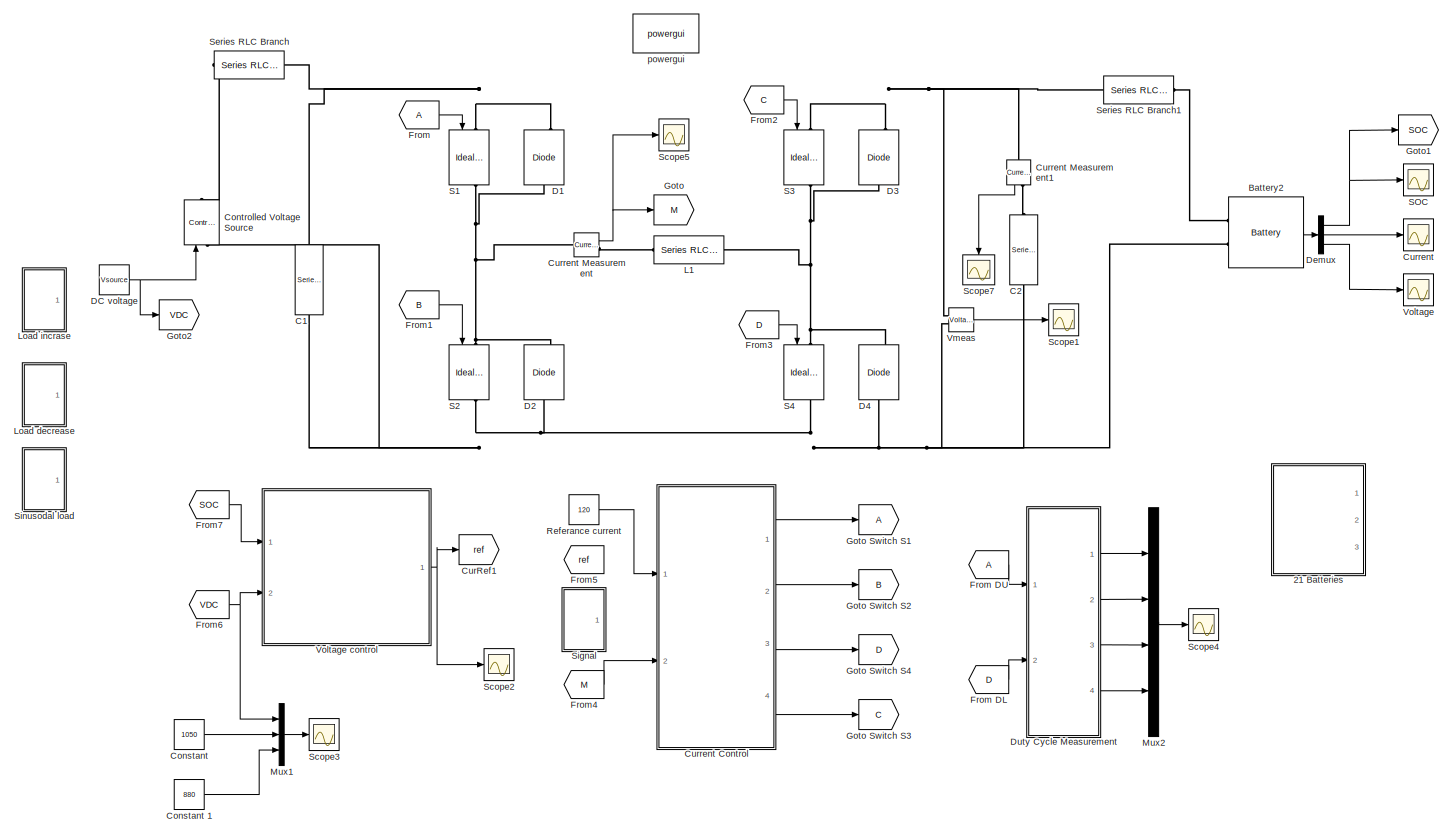
[diagram: root canvas - part 1/1, most of the canvas]
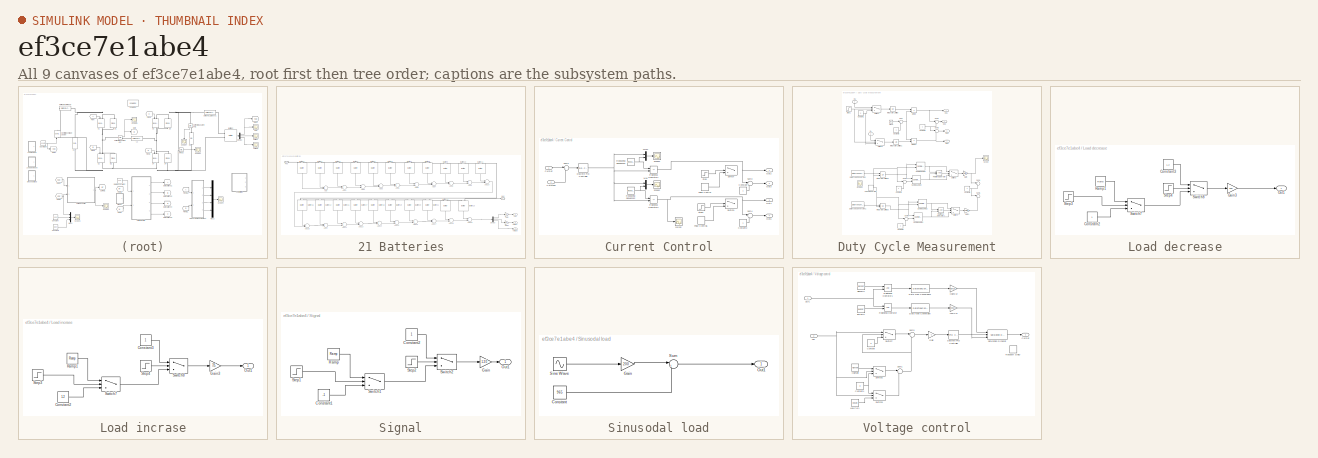
[diagram: thumbnail index - all 9 canvases of the model, root first then tree order]
MODEL slx_ef3ce7e1abe4
KIND model
CONFIG AbsTol = auto
CONFIG EnableMultiTasking = on
CONFIG FixedStep = auto
CONFIG MaxStep = auto
CONFIG MinStep = auto
CONFIG RelTol = 1e-3
CONFIG SampleTimeConstraint = Unconstrained
CONFIG Solver = ode45
CONFIG SolverName = ode45
CONFIG StartTime = 0.0
CONFIG StopTime = 5
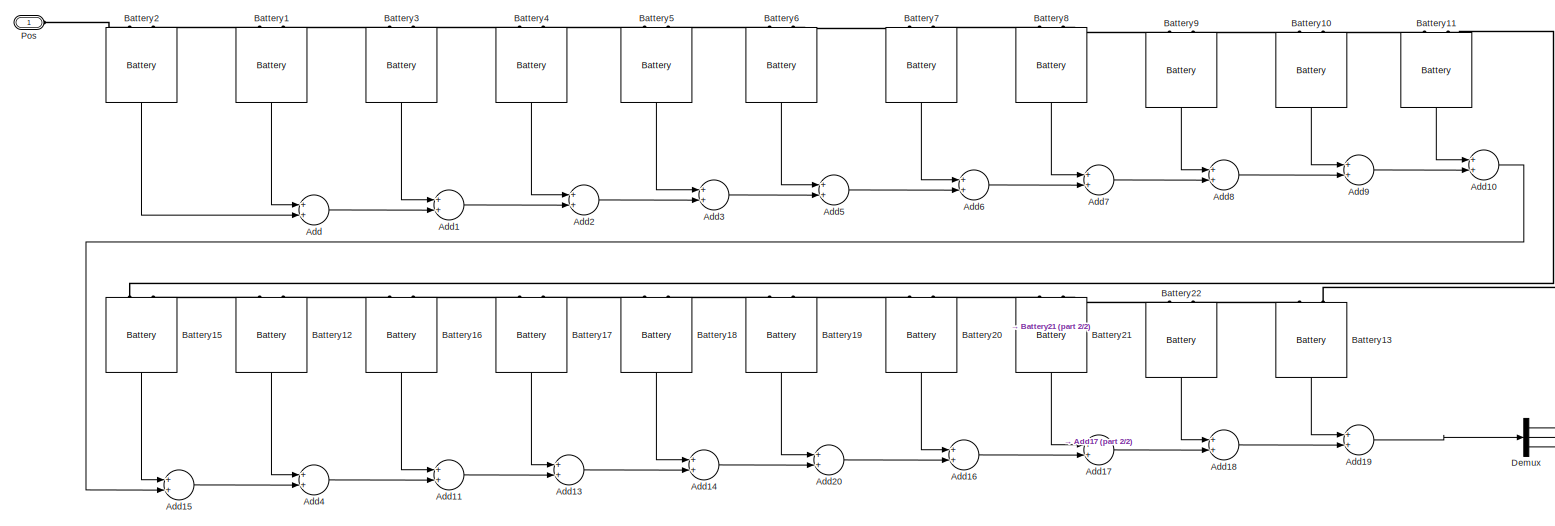
[diagram: 21 Batteries - part 1/2, most of the canvas]
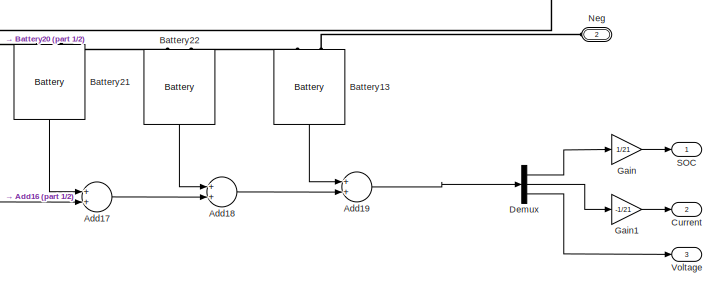
[diagram: 21 Batteries - part 2/2, bottom right region]
BLOCK [SubSystem] 21 Batteries
  Ports = [0, 3, 0, 0, 0, 2]
  RequestExecContextInheritance = off
BLOCK [Sum] 21 Batteries/Add
  InputSameDT = off
  OutDataTypeStr = Inherit: Inherit via internal rule
  Ports = [2, 1]
  SaturateOnIntegerOverflow = off
BLOCK [Sum] 21 Batteries/Add1
  InputSameDT = off
  OutDataTypeStr = Inherit: Inherit via internal rule
  Ports = [2, 1]
  SaturateOnIntegerOverflow = off
BLOCK [Sum] 21 Batteries/Add10
  InputSameDT = off
  OutDataTypeStr = Inherit: Inherit via internal rule
  Ports = [2, 1]
  SaturateOnIntegerOverflow = off
BLOCK [Sum] 21 Batteries/Add11
  InputSameDT = off
  OutDataTypeStr = Inherit: Inherit via internal rule
  Ports = [2, 1]
  SaturateOnIntegerOverflow = off
BLOCK [Sum] 21 Batteries/Add13
  InputSameDT = off
  OutDataTypeStr = Inherit: Inherit via internal rule
  Ports = [2, 1]
  SaturateOnIntegerOverflow = off
BLOCK [Sum] 21 Batteries/Add14
  InputSameDT = off
  OutDataTypeStr = Inherit: Inherit via internal rule
  Ports = [2, 1]
  SaturateOnIntegerOverflow = off
BLOCK [Sum] 21 Batteries/Add15
  InputSameDT = off
  OutDataTypeStr = Inherit: Inherit via internal rule
  Ports = [2, 1]
  SaturateOnIntegerOverflow = off
BLOCK [Sum] 21 Batteries/Add16
  InputSameDT = off
  OutDataTypeStr = Inherit: Inherit via internal rule
  Ports = [2, 1]
  SaturateOnIntegerOverflow = off
BLOCK [Sum] 21 Batteries/Add17
  InputSameDT = off
  OutDataTypeStr = Inherit: Inherit via internal rule
  Ports = [2, 1]
  SaturateOnIntegerOverflow = off
BLOCK [Sum] 21 Batteries/Add18
  InputSameDT = off
  OutDataTypeStr = Inherit: Inherit via internal rule
  Ports = [2, 1]
  SaturateOnIntegerOverflow = off
BLOCK [Sum] 21 Batteries/Add19
  InputSameDT = off
  OutDataTypeStr = Inherit: Inherit via internal rule
  Ports = [2, 1]
  SaturateOnIntegerOverflow = off
BLOCK [Sum] 21 Batteries/Add2
  InputSameDT = off
  OutDataTypeStr = Inherit: Inherit via internal rule
  Ports = [2, 1]
  SaturateOnIntegerOverflow = off
BLOCK [Sum] 21 Batteries/Add20
  InputSameDT = off
  OutDataTypeStr = Inherit: Inherit via internal rule
  Ports = [2, 1]
  SaturateOnIntegerOverflow = off
BLOCK [Sum] 21 Batteries/Add3
  InputSameDT = off
  OutDataTypeStr = Inherit: Inherit via internal rule
  Ports = [2, 1]
  SaturateOnIntegerOverflow = off
BLOCK [Sum] 21 Batteries/Add4
  InputSameDT = off
  OutDataTypeStr = Inherit: Inherit via internal rule
  Ports = [2, 1]
  SaturateOnIntegerOverflow = off
BLOCK [Sum] 21 Batteries/Add5
  InputSameDT = off
  OutDataTypeStr = Inherit: Inherit via internal rule
  Ports = [2, 1]
  SaturateOnIntegerOverflow = off
BLOCK [Sum] 21 Batteries/Add6
  InputSameDT = off
  OutDataTypeStr = Inherit: Inherit via internal rule
  Ports = [2, 1]
  SaturateOnIntegerOverflow = off
BLOCK [Sum] 21 Batteries/Add7
  InputSameDT = off
  OutDataTypeStr = Inherit: Inherit via internal rule
  Ports = [2, 1]
  SaturateOnIntegerOverflow = off
BLOCK [Sum] 21 Batteries/Add8
  InputSameDT = off
  OutDataTypeStr = Inherit: Inherit via internal rule
  Ports = [2, 1]
  SaturateOnIntegerOverflow = off
BLOCK [Sum] 21 Batteries/Add9
  InputSameDT = off
  OutDataTypeStr = Inherit: Inherit via internal rule
  Ports = [2, 1]
  SaturateOnIntegerOverflow = off
BLOCK [Reference] 21 Batteries/Battery1  REF=electricdrivelib/Extra Sources/Battery
  Ports = [0, 1, 0, 0, 0, 2]
  SourceBlock = electricdrivelib/Extra Sources/Battery
  SourceProductBaseCode = PS
  SourceProductName = Simscape Electrical
  SourceType = Battery
BLOCK [Reference] 21 Batteries/Battery10  REF=electricdrivelib/Extra Sources/Battery
  Ports = [0, 1, 0, 0, 0, 2]
  SourceBlock = electricdrivelib/Extra Sources/Battery
  SourceProductBaseCode = PS
  SourceProductName = Simscape Electrical
  SourceType = Battery
BLOCK [Reference] 21 Batteries/Battery11  REF=electricdrivelib/Extra Sources/Battery
  Ports = [0, 1, 0, 0, 0, 2]
  SourceBlock = electricdrivelib/Extra Sources/Battery
  SourceProductBaseCode = PS
  SourceProductName = Simscape Electrical
  SourceType = Battery
BLOCK [Reference] 21 Batteries/Battery12  REF=electricdrivelib/Extra Sources/Battery
  Ports = [0, 1, 0, 0, 0, 2]
  SourceBlock = electricdrivelib/Extra Sources/Battery
  SourceProductBaseCode = PS
  SourceProductName = Simscape Electrical
  SourceType = Battery
BLOCK [Reference] 21 Batteries/Battery13  REF=electricdrivelib/Extra Sources/Battery
  Ports = [0, 1, 0, 0, 0, 2]
  SourceBlock = electricdrivelib/Extra Sources/Battery
  SourceProductBaseCode = PS
  SourceProductName = Simscape Electrical
  SourceType = Battery
BLOCK [Reference] 21 Batteries/Battery15  REF=electricdrivelib/Extra Sources/Battery
  Ports = [0, 1, 0, 0, 0, 2]
  SourceBlock = electricdrivelib/Extra Sources/Battery
  SourceProductBaseCode = PS
  SourceProductName = Simscape Electrical
  SourceType = Battery
BLOCK [Reference] 21 Batteries/Battery16  REF=electricdrivelib/Extra Sources/Battery
  Ports = [0, 1, 0, 0, 0, 2]
  SourceBlock = electricdrivelib/Extra Sources/Battery
  SourceProductBaseCode = PS
  SourceProductName = Simscape Electrical
  SourceType = Battery
BLOCK [Reference] 21 Batteries/Battery17  REF=electricdrivelib/Extra Sources/Battery
  Ports = [0, 1, 0, 0, 0, 2]
  SourceBlock = electricdrivelib/Extra Sources/Battery
  SourceProductBaseCode = PS
  SourceProductName = Simscape Electrical
  SourceType = Battery
BLOCK [Reference] 21 Batteries/Battery18  REF=electricdrivelib/Extra Sources/Battery
  Ports = [0, 1, 0, 0, 0, 2]
  SourceBlock = electricdrivelib/Extra Sources/Battery
  SourceProductBaseCode = PS
  SourceProductName = Simscape Electrical
  SourceType = Battery
BLOCK [Reference] 21 Batteries/Battery19  REF=electricdrivelib/Extra Sources/Battery
  Ports = [0, 1, 0, 0, 0, 2]
  SourceBlock = electricdrivelib/Extra Sources/Battery
  SourceProductBaseCode = PS
  SourceProductName = Simscape Electrical
  SourceType = Battery
BLOCK [Reference] 21 Batteries/Battery2  REF=electricdrivelib/Extra Sources/Battery
  Ports = [0, 1, 0, 0, 0, 2]
  SourceBlock = electricdrivelib/Extra Sources/Battery
  SourceProductBaseCode = PS
  SourceProductName = Simscape Electrical
  SourceType = Battery
BLOCK [Reference] 21 Batteries/Battery20  REF=electricdrivelib/Extra Sources/Battery
  Ports = [0, 1, 0, 0, 0, 2]
  SourceBlock = electricdrivelib/Extra Sources/Battery
  SourceProductBaseCode = PS
  SourceProductName = Simscape Electrical
  SourceType = Battery
BLOCK [Reference] 21 Batteries/Battery21  REF=electricdrivelib/Extra Sources/Battery
  Ports = [0, 1, 0, 0, 0, 2]
  SourceBlock = electricdrivelib/Extra Sources/Battery
  SourceProductBaseCode = PS
  SourceProductName = Simscape Electrical
  SourceType = Battery
BLOCK [Reference] 21 Batteries/Battery22  REF=electricdrivelib/Extra Sources/Battery
  Ports = [0, 1, 0, 0, 0, 2]
  SourceBlock = electricdrivelib/Extra Sources/Battery
  SourceProductBaseCode = PS
  SourceProductName = Simscape Electrical
  SourceType = Battery
BLOCK [Reference] 21 Batteries/Battery3  REF=electricdrivelib/Extra Sources/Battery
  Ports = [0, 1, 0, 0, 0, 2]
  SourceBlock = electricdrivelib/Extra Sources/Battery
  SourceProductBaseCode = PS
  SourceProductName = Simscape Electrical
  SourceType = Battery
BLOCK [Reference] 21 Batteries/Battery4  REF=electricdrivelib/Extra Sources/Battery
  Ports = [0, 1, 0, 0, 0, 2]
  SourceBlock = electricdrivelib/Extra Sources/Battery
  SourceProductBaseCode = PS
  SourceProductName = Simscape Electrical
  SourceType = Battery
BLOCK [Reference] 21 Batteries/Battery5  REF=electricdrivelib/Extra Sources/Battery
  Ports = [0, 1, 0, 0, 0, 2]
  SourceBlock = electricdrivelib/Extra Sources/Battery
  SourceProductBaseCode = PS
  SourceProductName = Simscape Electrical
  SourceType = Battery
BLOCK [Reference] 21 Batteries/Battery6  REF=electricdrivelib/Extra Sources/Battery
  Ports = [0, 1, 0, 0, 0, 2]
  SourceBlock = electricdrivelib/Extra Sources/Battery
  SourceProductBaseCode = PS
  SourceProductName = Simscape Electrical
  SourceType = Battery
BLOCK [Reference] 21 Batteries/Battery7  REF=electricdrivelib/Extra Sources/Battery
  Ports = [0, 1, 0, 0, 0, 2]
  SourceBlock = electricdrivelib/Extra Sources/Battery
  SourceProductBaseCode = PS
  SourceProductName = Simscape Electrical
  SourceType = Battery
BLOCK [Reference] 21 Batteries/Battery8  REF=electricdrivelib/Extra Sources/Battery
  Ports = [0, 1, 0, 0, 0, 2]
  SourceBlock = electricdrivelib/Extra Sources/Battery
  SourceProductBaseCode = PS
  SourceProductName = Simscape Electrical
  SourceType = Battery
BLOCK [Reference] 21 Batteries/Battery9  REF=electricdrivelib/Extra Sources/Battery
  Ports = [0, 1, 0, 0, 0, 2]
  SourceBlock = electricdrivelib/Extra Sources/Battery
  SourceProductBaseCode = PS
  SourceProductName = Simscape Electrical
  SourceType = Battery
BLOCK [Outport] 21 Batteries/Current
  IconDisplay = Port number
  Port = 2
BLOCK [Demux] 21 Batteries/Demux
  DisplayOption = bar
  Outputs = 3
  Ports = [1, 3]
BLOCK [Gain] 21 Batteries/Gain
  Gain = 1/21
  OutDataTypeStr = Inherit: Inherit via internal rule
  ParamDataTypeStr = Inherit: Inherit via internal rule
  SaturateOnIntegerOverflow = off
BLOCK [Gain] 21 Batteries/Gain1
  Gain = -1/21
  OutDataTypeStr = Inherit: Inherit via internal rule
  ParamDataTypeStr = Inherit: Inherit via internal rule
  SaturateOnIntegerOverflow = off
BLOCK [PMIOPort] 21 Batteries/Neg
  Port = 2
  Side = Left
BLOCK [PMIOPort] 21 Batteries/Pos
  Side = Left
BLOCK [Outport] 21 Batteries/SOC
  IconDisplay = Port number
BLOCK [Outport] 21 Batteries/Voltage
  IconDisplay = Port number
  Port = 3
BLOCK [Reference] Battery2  REF=electricdrivelib/Extra Sources/Battery
  Ports = [0, 1, 0, 0, 0, 2]
  SourceBlock = electricdrivelib/Extra Sources/Battery
  SourceProductBaseCode = PS
  SourceProductName = Simscape Electrical
  SourceType = Battery
BLOCK [Reference] C1  REF=powerlib/Elements/Series RLC Branch
  Ports = [0, 0, 0, 0, 0, 1, 1]
  SourceBlock = powerlib/Elements/Series RLC Branch
  SourceProductBaseCode = PS
  SourceProductName = Simscape Electrical
  SourceType = Series RLC Branch
BLOCK [Reference] C2  REF=powerlib/Elements/Series RLC Branch
  Ports = [0, 0, 0, 0, 0, 1, 1]
  SourceBlock = powerlib/Elements/Series RLC Branch
  SourceProductBaseCode = PS
  SourceProductName = Simscape Electrical
  SourceType = Series RLC Branch
BLOCK [Constant] Constant 
  Value = 1050
BLOCK [Constant] Constant 1
  Value = 880
BLOCK [Reference] Controlled Voltage Source  REF=powerlib/Electrical
Sources/Controlled Voltage Source
  Ports = [1, 0, 0, 0, 0, 1, 1]
  SourceBlock = powerlib/Electrical\nSources/Controlled Voltage Source
  SourceProductBaseCode = PS
  SourceProductName = Simscape Electrical
  SourceType = Controlled Voltage Source
BLOCK [Goto] CurRef1
  GotoTag = ref
BLOCK [Scope] Current
  Floating = off
  NumInputPorts = 1
  Ports = [1]
  ScopeSpecificationString = Simulink.scopes.TimeScopeBlockCfg('CurrentConfiguration', extmgr.ConfigurationSet(extmgr.Configuration('Core','General UI',true),extmgr.Configuration('Core','Source UI',true),extmgr.Configuration('Sources','WiredSimulink',true,'DataLoggingVariableName','ScopeData5','DataLoggingSaveFormat','StructureWithTime','DataLoggingDecimation','1','DataLoggingDecimateData',true),extmgr.Configuration('Visuals'...<+1711ch>
BLOCK [SubSystem] Current Control
  Ports = [2, 4]
  RequestExecContextInheritance = off
BLOCK [Constant] Current Control/Constant
BLOCK [Constant] Current Control/Costant2
BLOCK [Inport] Current Control/CurMeas
  IconDisplay = Port number
  Port = 2
BLOCK [Inport] Current Control/CurRef
  IconDisplay = Port number
BLOCK [Reference] Current Control/Discrete PID Controller  REF=simulink/Continuous/PID Controller
  Ports = [1, 1]
  SourceBlock = simulink/Continuous/PID Controller
  SourceProductBaseCode = SL
  SourceProductName = Simulink
  SourceType = PID 1dof
BLOCK [Mux] Current Control/Mux
  DisplayOption = bar
  Inputs = 2
  Ports = [2, 1]
BLOCK [Mux] Current Control/Mux1
  DisplayOption = bar
  Inputs = 2
  Ports = [2, 1]
BLOCK [Outport] Current Control/Out2
  IconDisplay = Port number
BLOCK [Outport] Current Control/Out3
  IconDisplay = Port number
  Port = 2
BLOCK [Outport] Current Control/Out4
  IconDisplay = Port number
  Port = 3
BLOCK [Outport] Current Control/Out6
  IconDisplay = Port number
  Port = 4
BLOCK [DiscretePulseGenerator] Current Control/Pulse Control
  Period = 1/freq
  Ports = [0, 1]
  PulseType = Time based
  PulseWidth = initA
BLOCK [DiscretePulseGenerator] Current Control/Pulse Control1
  Period = 1/freq
  Ports = [0, 1]
  PulseType = Time based
  PulseWidth = initD
BLOCK [RelationalOperator] Current Control/Relational Operator1
  InputSameDT = off
  Operator = <=
  OutDataTypeStr = boolean
  Ports = [2, 1]
BLOCK [RelationalOperator] Current Control/Relational Operator2
  InputSameDT = off
  Operator = <=
  OutDataTypeStr = boolean
  Ports = [2, 1]
BLOCK [Reference] Current Control/Repeating Sequence1  REF=simulink/Sources/Repeating
Sequence
  Ports = [0, 1]
  SourceBlock = simulink/Sources/Repeating\nSequence
  SourceProductBaseCode = SL
  SourceProductName = Simulink
  SourceType = Repeating table
BLOCK [Reference] Current Control/Repeating Sequence2  REF=simulink/Sources/Repeating
Sequence
  Ports = [0, 1]
  SourceBlock = simulink/Sources/Repeating\nSequence
  SourceProductBaseCode = SL
  SourceProductName = Simulink
  SourceType = Repeating table
BLOCK [Scope] Current Control/Scope2
  Floating = off
  NumInputPorts = 1
  Ports = [1]
  ScopeSpecificationString = C++SS(StrPVP('Location','[5, 48, 1365, 762]'),StrPVP('Open','off'),MxPVP('AxesTitles',53,'struct(''axes1'',''%<SignalLabel>'')'),MxPVP('ScopeGraphics',56,'struct(''FigureColor'',''[0.5 0.5 0.5]'',''AxesColor'',''[0 0 0]'',''AxesTickColor'',''[1 1 1]'',''LineColors'',''[1 1 0;1 0 1;0 1 1;1 0 0;0 1 0;0 0 1]'',''LineStyles'',''-|-|-|-|-|-'',''LineWidths'',''[0.5 0.5 0.5 0.5 0.5 0.5]'',''MarkerStyles'...<+312ch>
BLOCK [Scope] Current Control/Scope3
  Floating = off
  NumInputPorts = 1
  Ports = [1]
  ScopeSpecificationString = C++SS(StrPVP('Location','[5, 48, 1365, 762]'),StrPVP('Open','off'),MxPVP('AxesTitles',53,'struct(''axes1'',''%<SignalLabel>'')'),MxPVP('ScopeGraphics',56,'struct(''FigureColor'',''[0.5 0.5 0.5]'',''AxesColor'',''[0 0 0]'',''AxesTickColor'',''[1 1 1]'',''LineColors'',''[1 1 0;1 0 1;0 1 1;1 0 0;0 1 0;0 0 1]'',''LineStyles'',''-|-|-|-|-|-'',''LineWidths'',''[0.5 0.5 0.5 0.5 0.5 0.5]'',''MarkerStyles'...<+270ch>
BLOCK [Step] Current Control/Step
  Before = -1
  SampleTime = 0
  Time = stepTime
BLOCK [Step] Current Control/Step1
  Before = -1
  SampleTime = 0
  Time = stepTime
BLOCK [Sum] Current Control/Sum2
  IconShape = round
  InputSameDT = off
  Inputs = |+-
  OutDataTypeStr = Inherit: Inherit via internal rule
  Ports = [2, 1]
  SaturateOnIntegerOverflow = off
BLOCK [Sum] Current Control/Sum3
  IconShape = round
  InputSameDT = off
  Inputs = |-+
  OutDataTypeStr = Inherit: Inherit via internal rule
  Ports = [2, 1]
  SaturateOnIntegerOverflow = off
BLOCK [Sum] Current Control/Sum4
  IconShape = round
  InputSameDT = off
  Inputs = |-+
  OutDataTypeStr = Inherit: Inherit via internal rule
  Ports = [2, 1]
  SaturateOnIntegerOverflow = off
BLOCK [Switch] Current Control/Switch
  Criteria = u2 > Threshold
  InputSameDT = off
  SaturateOnIntegerOverflow = off
BLOCK [Switch] Current Control/Switch1
  Criteria = u2 > Threshold
  InputSameDT = off
  SaturateOnIntegerOverflow = off
BLOCK [Scope] Current Control/curcon
  Floating = off
  NumInputPorts = 1
  Ports = [1]
  ScopeSpecificationString = C++SS(StrPVP('Location','[5, 48, 1365, 762]'),StrPVP('Open','off'),MxPVP('AxesTitles',53,'struct(''axes1'',''%<SignalLabel>'')'),MxPVP('ScopeGraphics',56,'struct(''FigureColor'',''[0.5 0.5 0.5]'',''AxesColor'',''[0 0 0]'',''AxesTickColor'',''[1 1 1]'',''LineColors'',''[1 1 0;1 0 1;0 1 1;1 0 0;0 1 0;0 0 1]'',''LineStyles'',''-|-|-|-|-|-'',''LineWidths'',''[0.5 0.5 0.5 0.5 0.5 0.5]'',''MarkerStyles'...<+297ch>
BLOCK [Reference] Current Measurement  REF=powerlib/Measurements/Current Measurement
  Ports = [0, 1, 0, 0, 0, 1, 1]
  SourceBlock = powerlib/Measurements/Current Measurement
  SourceProductBaseCode = PS
  SourceProductName = Simscape Electrical
  SourceType = Current Measurement
BLOCK [Reference] Current Measurement1  REF=powerlib/Measurements/Current Measurement
  Ports = [0, 1, 0, 0, 0, 1, 1]
  SourceBlock = powerlib/Measurements/Current Measurement
  SourceProductBaseCode = PS
  SourceProductName = Simscape Electrical
  SourceType = Current Measurement
BLOCK [Reference] D1  REF=powerlib/Power
Electronics/Diode
  Ports = [0, 1, 0, 0, 0, 1, 1]
  SourceBlock = powerlib/Power\nElectronics/Diode
  SourceProductBaseCode = PS
  SourceProductName = Simscape Electrical
  SourceType = Diode
BLOCK [Reference] D2  REF=powerlib/Power
Electronics/Diode
  Ports = [0, 1, 0, 0, 0, 1, 1]
  SourceBlock = powerlib/Power\nElectronics/Diode
  SourceProductBaseCode = PS
  SourceProductName = Simscape Electrical
  SourceType = Diode
BLOCK [Reference] D3  REF=powerlib/Power
Electronics/Diode
  Ports = [0, 1, 0, 0, 0, 1, 1]
  SourceBlock = powerlib/Power\nElectronics/Diode
  SourceProductBaseCode = PS
  SourceProductName = Simscape Electrical
  SourceType = Diode
BLOCK [Reference] D4  REF=powerlib/Power
Electronics/Diode
  Ports = [0, 1, 0, 0, 0, 1, 1]
  SourceBlock = powerlib/Power\nElectronics/Diode
  SourceProductBaseCode = PS
  SourceProductName = Simscape Electrical
  SourceType = Diode
BLOCK [Constant] DC voltage
  Value = Vsource
BLOCK [Demux] Demux
  DisplayOption = bar
  Outputs = 3
  Ports = [1, 3]
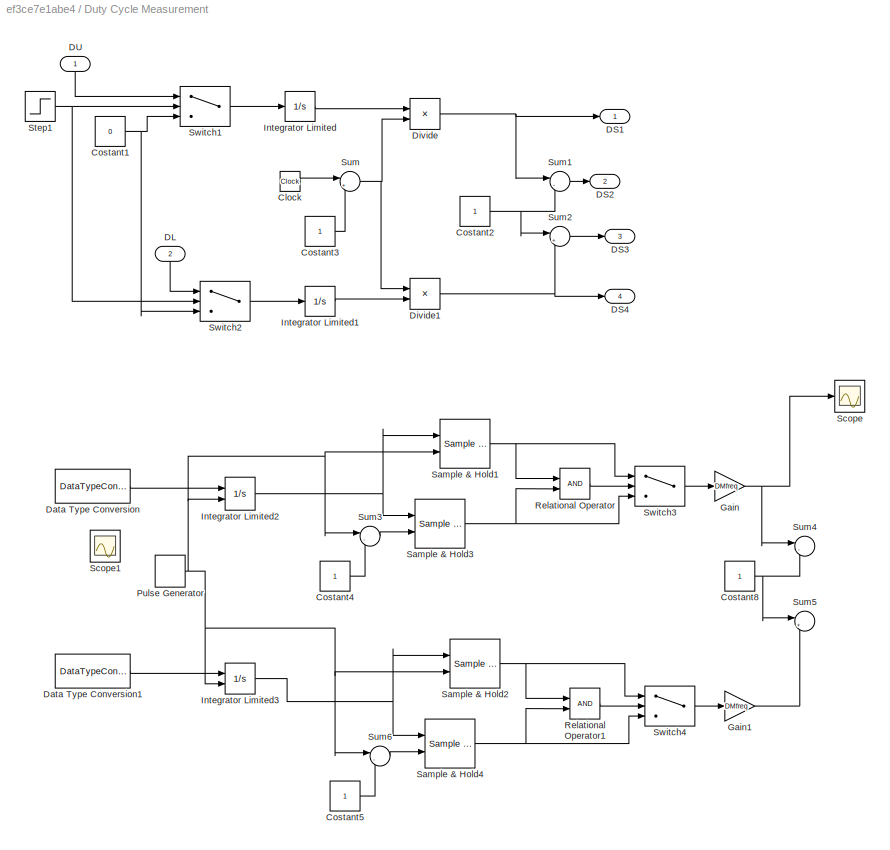
BLOCK [SubSystem] Duty Cycle Measurement
  Ports = [2, 4]
  RequestExecContextInheritance = off
BLOCK [Clock] Duty Cycle Measurement/Clock
BLOCK [Constant] Duty Cycle Measurement/Costant1
  Value = 0
BLOCK [Constant] Duty Cycle Measurement/Costant2
BLOCK [Constant] Duty Cycle Measurement/Costant3
BLOCK [Constant] Duty Cycle Measurement/Costant4
  Commented = on
BLOCK [Constant] Duty Cycle Measurement/Costant5
  Commented = on
BLOCK [Constant] Duty Cycle Measurement/Costant8
  Commented = on
BLOCK [Inport] Duty Cycle Measurement/DL
  IconDisplay = Port number
  Port = 2
BLOCK [Outport] Duty Cycle Measurement/DS1
  IconDisplay = Port number
BLOCK [Outport] Duty Cycle Measurement/DS2
  IconDisplay = Port number
  Port = 2
BLOCK [Outport] Duty Cycle Measurement/DS3
  IconDisplay = Port number
  Port = 3
BLOCK [Outport] Duty Cycle Measurement/DS4
  IconDisplay = Port number
  Port = 4
BLOCK [Inport] Duty Cycle Measurement/DU
  IconDisplay = Port number
BLOCK [DataTypeConversion] Duty Cycle Measurement/Data Type Conversion
  Commented = on
  OutDataTypeStr = double
  RndMeth = Floor
  SaturateOnIntegerOverflow = off
BLOCK [DataTypeConversion] Duty Cycle Measurement/Data Type Conversion1
  Commented = on
  OutDataTypeStr = double
  RndMeth = Floor
  SaturateOnIntegerOverflow = off
BLOCK [Product] Duty Cycle Measurement/Divide
  InputSameDT = off
  Inputs = */
  OutDataTypeStr = Inherit: Inherit via internal rule
  Ports = [2, 1]
  RndMeth = Floor
  SaturateOnIntegerOverflow = off
BLOCK [Product] Duty Cycle Measurement/Divide1
  InputSameDT = off
  Inputs = /*
  OutDataTypeStr = Inherit: Inherit via internal rule
  Ports = [2, 1]
  RndMeth = Floor
  SaturateOnIntegerOverflow = off
BLOCK [Gain] Duty Cycle Measurement/Gain
  Commented = on
  Gain = DMfreq
  OutDataTypeStr = Inherit: Inherit via internal rule
  ParamDataTypeStr = Inherit: Inherit via internal rule
  SaturateOnIntegerOverflow = off
BLOCK [Gain] Duty Cycle Measurement/Gain1
  Commented = on
  Gain = DMfreq
  OutDataTypeStr = Inherit: Inherit via internal rule
  ParamDataTypeStr = Inherit: Inherit via internal rule
  SaturateOnIntegerOverflow = off
BLOCK [Integrator] Duty Cycle Measurement/Integrator Limited
  LowerSaturationLimit = 0
  Ports = [1, 1]
  UpperSaturationLimit = 1
BLOCK [Integrator] Duty Cycle Measurement/Integrator Limited1
  LowerSaturationLimit = 0
  Ports = [1, 1]
  UpperSaturationLimit = 1
BLOCK [Integrator] Duty Cycle Measurement/Integrator Limited2
  Commented = on
  ExternalReset = either
  LowerSaturationLimit = 0
  Ports = [2, 1]
  UpperSaturationLimit = 1
BLOCK [Integrator] Duty Cycle Measurement/Integrator Limited3
  Commented = on
  ExternalReset = either
  LowerSaturationLimit = 0
  Ports = [2, 1]
  UpperSaturationLimit = 1
BLOCK [DiscretePulseGenerator] Duty Cycle Measurement/Pulse Generator
  Commented = on
  Period = 2/DMfreq
  Ports = [0, 1]
  PulseType = Time based
  PulseWidth = 50
BLOCK [RelationalOperator] Duty Cycle Measurement/Relational Operator
  Commented = on
  InputSameDT = off
  OutDataTypeStr = boolean
  Ports = [2, 1]
BLOCK [RelationalOperator] Duty Cycle Measurement/Relational Operator1
  Commented = on
  InputSameDT = off
  OutDataTypeStr = boolean
  Ports = [2, 1]
BLOCK [Reference] Duty Cycle Measurement/Sample & Hold1  REF=powerlib_extras/Control 
Blocks/Sample & Hold
  Ports = [2, 1]
  SourceBlock = powerlib_extras/Control \nBlocks/Sample & Hold
  SourceProductBaseCode = PS
  SourceProductName = Simscape Electrical
  SourceType = Sample & Hold
BLOCK [Reference] Duty Cycle Measurement/Sample & Hold2  REF=powerlib_extras/Control 
Blocks/Sample & Hold
  Ports = [2, 1]
  SourceBlock = powerlib_extras/Control \nBlocks/Sample & Hold
  SourceProductBaseCode = PS
  SourceProductName = Simscape Electrical
  SourceType = Sample & Hold
BLOCK [Reference] Duty Cycle Measurement/Sample & Hold3  REF=powerlib_extras/Control 
Blocks/Sample & Hold
  Ports = [2, 1]
  SourceBlock = powerlib_extras/Control \nBlocks/Sample & Hold
  SourceProductBaseCode = PS
  SourceProductName = Simscape Electrical
  SourceType = Sample & Hold
BLOCK [Reference] Duty Cycle Measurement/Sample & Hold4  REF=powerlib_extras/Control 
Blocks/Sample & Hold
  Ports = [2, 1]
  SourceBlock = powerlib_extras/Control \nBlocks/Sample & Hold
  SourceProductBaseCode = PS
  SourceProductName = Simscape Electrical
  SourceType = Sample & Hold
BLOCK [Scope] Duty Cycle Measurement/Scope
  Commented = on
  Floating = off
  NumInputPorts = 1
  Ports = [1]
  ScopeSpecificationString = C++SS(StrPVP('Location','[1, 49, 1367, 727]'),StrPVP('Open','off'),MxPVP('AxesTitles',53,'struct(''axes1'',''%<SignalLabel>'')'),MxPVP('ScopeGraphics',56,'struct(''FigureColor'',''[0.5 0.5 0.5]'',''AxesColor'',''[0 0 0]'',''AxesTickColor'',''[1 1 1]'',''LineColors'',''[1 1 0;1 0 1;0 1 1;1 0 0;0 1 0;0 0 1]'',''LineStyles'',''-|-|-|-|-|-'',''LineWidths'',''[0.5 0.5 0.5 0.5 0.5 0.5]'',''MarkerStyles'...<+238ch>
BLOCK [Scope] Duty Cycle Measurement/Scope1
  Commented = on
  Floating = off
  NumInputPorts = 1
  Ports = [1]
  ScopeSpecificationString = C++SS(StrPVP('Location','[129, 162, 956, 401]'),StrPVP('Open','off'),MxPVP('AxesTitles',53,'struct(''axes1'',''%<SignalLabel>'')'),MxPVP('ScopeGraphics',56,'struct(''FigureColor'',''[0.5 0.5 0.5]'',''AxesColor'',''[0 0 0]'',''AxesTickColor'',''[1 1 1]'',''LineColors'',''[1 1 0;1 0 1;0 1 1;1 0 0;0 1 0;0 0 1]'',''LineStyles'',''-|-|-|-|-|-'',''LineWidths'',''[0.5 0.5 0.5 0.5 0.5 0.5]'',''MarkerStyle...<+272ch>
BLOCK [Step] Duty Cycle Measurement/Step1
  Before = -1
  SampleTime = 0
BLOCK [Sum] Duty Cycle Measurement/Sum
  IconShape = round
  InputSameDT = off
  Inputs = |+-
  OutDataTypeStr = Inherit: Inherit via internal rule
  Ports = [2, 1]
  SaturateOnIntegerOverflow = off
BLOCK [Sum] Duty Cycle Measurement/Sum1
  IconShape = round
  InputSameDT = off
  Inputs = |-+
  OutDataTypeStr = Inherit: Inherit via internal rule
  Ports = [2, 1]
  SaturateOnIntegerOverflow = off
BLOCK [Sum] Duty Cycle Measurement/Sum2
  IconShape = round
  InputSameDT = off
  Inputs = |+-
  OutDataTypeStr = Inherit: Inherit via internal rule
  Ports = [2, 1]
  SaturateOnIntegerOverflow = off
BLOCK [Sum] Duty Cycle Measurement/Sum3
  Commented = on
  IconShape = round
  InputSameDT = off
  Inputs = |-+
  OutDataTypeStr = Inherit: Inherit via internal rule
  Ports = [2, 1]
  SaturateOnIntegerOverflow = off
BLOCK [Sum] Duty Cycle Measurement/Sum4
  Commented = on
  IconShape = round
  InputSameDT = off
  Inputs = |-+
  OutDataTypeStr = Inherit: Inherit via internal rule
  Ports = [2, 1]
  SaturateOnIntegerOverflow = off
BLOCK [Sum] Duty Cycle Measurement/Sum5
  Commented = on
  IconShape = round
  InputSameDT = off
  Inputs = |+-
  OutDataTypeStr = Inherit: Inherit via internal rule
  Ports = [2, 1]
  SaturateOnIntegerOverflow = off
BLOCK [Sum] Duty Cycle Measurement/Sum6
  Commented = on
  IconShape = round
  InputSameDT = off
  Inputs = |-+
  OutDataTypeStr = Inherit: Inherit via internal rule
  Ports = [2, 1]
  SaturateOnIntegerOverflow = off
BLOCK [Switch] Duty Cycle Measurement/Switch1
  Criteria = u2 > Threshold
  InputSameDT = off
  SaturateOnIntegerOverflow = off
BLOCK [Switch] Duty Cycle Measurement/Switch2
  Criteria = u2 > Threshold
  InputSameDT = off
  SaturateOnIntegerOverflow = off
BLOCK [Switch] Duty Cycle Measurement/Switch3
  Commented = on
  Criteria = u2 > Threshold
  InputSameDT = off
  SaturateOnIntegerOverflow = off
BLOCK [Switch] Duty Cycle Measurement/Switch4
  Commented = on
  Criteria = u2 > Threshold
  InputSameDT = off
  SaturateOnIntegerOverflow = off
BLOCK [From] From
BLOCK [From] From DL
  GotoTag = D
BLOCK [From] From DU
BLOCK [From] From1
  GotoTag = B
BLOCK [From] From2
  GotoTag = C
BLOCK [From] From3
  GotoTag = D
BLOCK [From] From4
  GotoTag = M
BLOCK [From] From5
  GotoTag = ref
BLOCK [From] From6
  GotoTag = VDC
BLOCK [From] From7
  GotoTag = SOC
BLOCK [Goto] Goto
  GotoTag = M
BLOCK [Goto] Goto Switch S1
BLOCK [Goto] Goto Switch S2
  GotoTag = B
BLOCK [Goto] Goto Switch S3
  GotoTag = C
BLOCK [Goto] Goto Switch S4
  GotoTag = D
BLOCK [Goto] Goto1
  GotoTag = SOC
BLOCK [Goto] Goto2
  GotoTag = VDC
BLOCK [Reference] L1  REF=powerlib/Elements/Series RLC Branch
  Ports = [0, 0, 0, 0, 0, 1, 1]
  SourceBlock = powerlib/Elements/Series RLC Branch
  SourceProductBaseCode = PS
  SourceProductName = Simscape Electrical
  SourceType = Series RLC Branch
BLOCK [SubSystem] Load decrease
  Ports = [0, 1]
  RequestExecContextInheritance = off
BLOCK [Constant] Load decrease/Constant2
BLOCK [Constant] Load decrease/Constant3
  Value = 1.2
BLOCK [Gain] Load decrease/Gain3
  Gain = 930
  OutDataTypeStr = Inherit: Inherit via internal rule
  ParamDataTypeStr = Inherit: Inherit via internal rule
  SaturateOnIntegerOverflow = off
BLOCK [Outport] Load decrease/Out1
  IconDisplay = Port number
BLOCK [Reference] Load decrease/Ramp1  REF=simulink/Sources/Ramp
  Ports = [0, 1]
  SourceBlock = simulink/Sources/Ramp
  SourceProductBaseCode = SL
  SourceProductName = Simulink
  SourceType = Ramp
BLOCK [Step] Load decrease/Step3
  Before = -1
  SampleTime = 0
  Time = 2
BLOCK [Step] Load decrease/Step4
  Before = -1
  SampleTime = 0
  Time = 4
BLOCK [Switch] Load decrease/Switch7
  InputSameDT = off
  SaturateOnIntegerOverflow = off
BLOCK [Switch] Load decrease/Switch8
  InputSameDT = off
  SaturateOnIntegerOverflow = off
BLOCK [SubSystem] Load incrase
  Ports = [0, 1]
  RequestExecContextInheritance = off
BLOCK [Constant] Load incrase/Constant2
  Value = 1.2
BLOCK [Constant] Load incrase/Constant3
BLOCK [Gain] Load incrase/Gain3
  Gain = 775
  OutDataTypeStr = Inherit: Inherit via internal rule
  ParamDataTypeStr = Inherit: Inherit via internal rule
  SaturateOnIntegerOverflow = off
BLOCK [Outport] Load incrase/Out1
  IconDisplay = Port number
BLOCK [Reference] Load incrase/Ramp1  REF=simulink/Sources/Ramp
  Ports = [0, 1]
  SourceBlock = simulink/Sources/Ramp
  SourceProductBaseCode = SL
  SourceProductName = Simulink
  SourceType = Ramp
BLOCK [Step] Load incrase/Step3
  Before = -1
  SampleTime = 0
  Time = 2
BLOCK [Step] Load incrase/Step4
  Before = -1
  SampleTime = 0
  Time = 4
BLOCK [Switch] Load incrase/Switch7
  InputSameDT = off
  SaturateOnIntegerOverflow = off
BLOCK [Switch] Load incrase/Switch8
  InputSameDT = off
  SaturateOnIntegerOverflow = off
BLOCK [Mux] Mux1
  DisplayOption = bar
  Inputs = 3
  Ports = [3, 1]
BLOCK [Mux] Mux2
  DisplayOption = bar
  Ports = [4, 1]
BLOCK [Constant] Referance current
  Value = 120
BLOCK [Reference] S1  REF=powerlib/Power
Electronics/Ideal Switch
  Ports = [1, 1, 0, 0, 0, 1, 1]
  SourceBlock = powerlib/Power\nElectronics/Ideal Switch
  SourceProductBaseCode = PS
  SourceProductName = Simscape Electrical
  SourceType = Ideal Switch
BLOCK [Reference] S2  REF=powerlib/Power
Electronics/Ideal Switch
  Ports = [1, 1, 0, 0, 0, 1, 1]
  SourceBlock = powerlib/Power\nElectronics/Ideal Switch
  SourceProductBaseCode = PS
  SourceProductName = Simscape Electrical
  SourceType = Ideal Switch
BLOCK [Reference] S3  REF=powerlib/Power
Electronics/Ideal Switch
  Ports = [1, 1, 0, 0, 0, 1, 1]
  SourceBlock = powerlib/Power\nElectronics/Ideal Switch
  SourceProductBaseCode = PS
  SourceProductName = Simscape Electrical
  SourceType = Ideal Switch
BLOCK [Reference] S4  REF=powerlib/Power
Electronics/Ideal Switch
  Ports = [1, 1, 0, 0, 0, 1, 1]
  SourceBlock = powerlib/Power\nElectronics/Ideal Switch
  SourceProductBaseCode = PS
  SourceProductName = Simscape Electrical
  SourceType = Ideal Switch
BLOCK [Scope] SOC
  Floating = off
  NumInputPorts = 1
  Ports = [1]
  ScopeSpecificationString = Simulink.scopes.TimeScopeBlockCfg('CurrentConfiguration', extmgr.ConfigurationSet(extmgr.Configuration('Core','General UI',true),extmgr.Configuration('Core','Source UI',true),extmgr.Configuration('Sources','WiredSimulink',true,'DataLogging',true,'DataLoggingVariableName','SOC','DataLoggingSaveFormat','StructureWithTime','DataLoggingDecimation','1','DataLoggingDecimateData',true),extmgr.Configurati...<+1707ch>
BLOCK [Scope] Scope1
  Floating = off
  NumInputPorts = 1
  Ports = [1]
  ScopeSpecificationString = Simulink.scopes.TimeScopeBlockCfg('CurrentConfiguration', extmgr.ConfigurationSet(extmgr.Configuration('Core','General UI',true),extmgr.Configuration('Core','Source UI',true),extmgr.Configuration('Sources','WiredSimulink',true,'DataLoggingVariableName','ScopeData1','DataLoggingSaveFormat','StructureWithTime','DataLoggingDecimation','1','DataLoggingDecimateData',true),extmgr.Configuration('Visuals'...<+1653ch>
BLOCK [Scope] Scope2
  Floating = off
  NumInputPorts = 1
  Ports = [1]
  ScopeSpecificationString = Simulink.scopes.TimeScopeBlockCfg('CurrentConfiguration', extmgr.ConfigurationSet(extmgr.Configuration('Core','General UI',true),extmgr.Configuration('Core','Source UI',true),extmgr.Configuration('Sources','WiredSimulink',true,'DataLogging',true,'DataLoggingVariableName','scope','DataLoggingSaveFormat','StructureWithTime','DataLoggingDecimation','1','DataLoggingDecimateData',true),extmgr.Configura...<+1792ch>
BLOCK [Scope] Scope3
  Floating = off
  NumInputPorts = 1
  Ports = [1]
  ScopeSpecificationString = Simulink.scopes.TimeScopeBlockCfg('CurrentConfiguration', extmgr.ConfigurationSet(extmgr.Configuration('Core','General UI',true),extmgr.Configuration('Core','Source UI',true),extmgr.Configuration('Sources','WiredSimulink',true,'DataLogging',true,'DataLoggingVariableName','scope3','DataLoggingSaveFormat','StructureWithTime','DataLoggingDecimation','1','DataLoggingDecimateData',true),extmgr.Configur...<+1822ch>
BLOCK [Scope] Scope4
  Floating = off
  NumInputPorts = 1
  Ports = [1]
  ScopeSpecificationString = Simulink.scopes.TimeScopeBlockCfg('CurrentConfiguration', extmgr.ConfigurationSet(extmgr.Configuration('Core','General UI',true),extmgr.Configuration('Core','Source UI',true),extmgr.Configuration('Sources','WiredSimulink',true,'DataLogging',true,'DataLoggingVariableName','ScopeData4','DataLoggingSaveFormat','StructureWithTime','DataLoggingDecimation','1','DataLoggingDecimateData',true),extmgr.Conf...<+1804ch>
BLOCK [Scope] Scope5
  Floating = off
  NumInputPorts = 1
  Ports = [1]
  ScopeSpecificationString = Simulink.scopes.TimeScopeBlockCfg('CurrentConfiguration', extmgr.ConfigurationSet(extmgr.Configuration('Core','General UI',true),extmgr.Configuration('Core','Source UI',true),extmgr.Configuration('Sources','WiredSimulink',true,'DataLogging',true,'DataLoggingVariableName','scope5','DataLoggingSaveFormat','StructureWithTime','DataLoggingDecimation','1','DataLoggingDecimateData',true),extmgr.Configur...<+1822ch>
BLOCK [Scope] Scope7
  Floating = off
  NumInputPorts = 1
  Ports = [1]
  ScopeSpecificationString = Simulink.scopes.TimeScopeBlockCfg('CurrentConfiguration', extmgr.ConfigurationSet(extmgr.Configuration('Core','General UI',true),extmgr.Configuration('Core','Source UI',true),extmgr.Configuration('Sources','WiredSimulink',true,'DataLoggingVariableName','ScopeData8','DataLoggingSaveFormat','StructureWithTime','DataLoggingDecimation','1','DataLoggingDecimateData',true),extmgr.Configuration('Visuals'...<+1714ch>
BLOCK [Reference] Series RLC Branch  REF=powerlib/Elements/Series RLC Branch
  Ports = [0, 0, 0, 0, 0, 1, 1]
  SourceBlock = powerlib/Elements/Series RLC Branch
  SourceProductBaseCode = PS
  SourceProductName = Simscape Electrical
  SourceType = Series RLC Branch
BLOCK [Reference] Series RLC Branch1  REF=powerlib/Elements/Series RLC Branch
  Ports = [0, 0, 0, 0, 0, 1, 1]
  SourceBlock = powerlib/Elements/Series RLC Branch
  SourceProductBaseCode = PS
  SourceProductName = Simscape Electrical
  SourceType = Series RLC Branch
BLOCK [SubSystem] Signal
  Ports = [0, 1]
  RequestExecContextInheritance = off
BLOCK [Constant] Signal/Constant1
  Value = -1
BLOCK [Constant] Signal/Constant2
BLOCK [Gain] Signal/Gain
  Gain = 120
  OutDataTypeStr = Inherit: Inherit via internal rule
  ParamDataTypeStr = Inherit: Inherit via internal rule
  SaturateOnIntegerOverflow = off
BLOCK [Outport] Signal/Out1
  IconDisplay = Port number
BLOCK [Reference] Signal/Ramp  REF=simulink/Sources/Ramp
  Ports = [0, 1]
  SourceBlock = simulink/Sources/Ramp
  SourceProductBaseCode = SL
  SourceProductName = Simulink
  SourceType = Ramp
BLOCK [Step] Signal/Step1
  Before = -1
  SampleTime = 0
  Time = 2
BLOCK [Step] Signal/Step2
  Before = -1
  SampleTime = 0
  Time = 4
BLOCK [Switch] Signal/Switch1
  InputSameDT = off
  SaturateOnIntegerOverflow = off
BLOCK [Switch] Signal/Switch2
  InputSameDT = off
  SaturateOnIntegerOverflow = off
BLOCK [SubSystem] Sinusodal load
  Ports = [0, 1]
  RequestExecContextInheritance = off
BLOCK [Constant] Sinusodal load/Constant
  Value = 965
BLOCK [Gain] Sinusodal load/Gain
  Gain = 200
  OutDataTypeStr = Inherit: Inherit via internal rule
  ParamDataTypeStr = Inherit: Inherit via internal rule
  SaturateOnIntegerOverflow = off
BLOCK [Outport] Sinusodal load/Out1
  IconDisplay = Port number
BLOCK [Sin] Sinusodal load/Sine Wave
  Frequency = 0.8
  Ports = [0, 1]
  SampleTime = 0
BLOCK [Sum] Sinusodal load/Sum
  IconShape = round
  InputSameDT = off
  Inputs = |++
  OutDataTypeStr = Inherit: Inherit via internal rule
  Ports = [2, 1]
  SaturateOnIntegerOverflow = off
BLOCK [Reference] Vmeas  REF=powerlib/Measurements/Voltage Measurement
  Ports = [0, 1, 0, 0, 0, 2]
  SourceBlock = powerlib/Measurements/Voltage Measurement
  SourceProductBaseCode = PS
  SourceProductName = Simscape Electrical
  SourceType = Voltage Measurement
BLOCK [Scope] Voltage
  Floating = off
  NumInputPorts = 1
  Ports = [1]
  ScopeSpecificationString = Simulink.scopes.TimeScopeBlockCfg('CurrentConfiguration', extmgr.ConfigurationSet(extmgr.Configuration('Core','General UI',true),extmgr.Configuration('Core','Source UI',true),extmgr.Configuration('Sources','WiredSimulink',true,'DataLogging',true,'DataLoggingVariableName','Voltage','DataLoggingSaveFormat','StructureWithTime','DataLoggingDecimation','1','DataLoggingDecimateData',true),extmgr.Configu...<+1719ch>
BLOCK [SubSystem] Voltage control
  Ports = [2, 1]
  RequestExecContextInheritance = off
BLOCK [Constant] Voltage control/Contant
  Value = 0
BLOCK [Constant] Voltage control/Contant1
  Value = 0
BLOCK [Outport] Voltage control/CurRef
  IconDisplay = Port number
BLOCK [DataTypeConversion] Voltage control/Data Type Conversion
  OutDataTypeStr = double
  RndMeth = Floor
  SaturateOnIntegerOverflow = off
BLOCK [DataTypeConversion] Voltage control/Data Type Conversion1
  OutDataTypeStr = double
  RndMeth = Floor
  SaturateOnIntegerOverflow = off
BLOCK [Reference] Voltage control/Discrete PID Controller  REF=simulink/Continuous/PID Controller
  Ports = [1, 1]
  SourceBlock = simulink/Continuous/PID Controller
  SourceProductBaseCode = SL
  SourceProductName = Simulink
  SourceType = PID 1dof
BLOCK [Gain] Voltage control/Gain
  Gain = -1
  OutDataTypeStr = Inherit: Inherit via internal rule
  ParamDataTypeStr = Inherit: Inherit via internal rule
  SaturateOnIntegerOverflow = off
BLOCK [Gain] Voltage control/HighCur
  Gain = highCur
  OutDataTypeStr = Inherit: Inherit via internal rule
  ParamDataTypeStr = Inherit: Inherit via internal rule
  SaturateOnIntegerOverflow = off
BLOCK [Constant] Voltage control/HighVolt
  Value = highVolt
BLOCK [Gain] Voltage control/LowCur
  Gain = lowCur
  OutDataTypeStr = Inherit: Inherit via internal rule
  ParamDataTypeStr = Inherit: Inherit via internal rule
  SaturateOnIntegerOverflow = off
BLOCK [Constant] Voltage control/LowCur1
  Value = lowVolt
BLOCK [RelationalOperator] Voltage control/Relational Operator
  InputSameDT = off
  OutDataTypeStr = boolean
  Ports = [2, 1]
BLOCK [RelationalOperator] Voltage control/Relational Operator1
  InputSameDT = off
  OutDataTypeStr = boolean
  Ports = [2, 1]
BLOCK [Inport] Voltage control/SOC
  IconDisplay = Port number
BLOCK [Reference] Voltage control/Saturation Dynamic  REF=simulink/Discontinuities/Saturation
Dynamic
  Ports = [3, 1]
  SourceBlock = simulink/Discontinuities/Saturation\nDynamic
  SourceProductBaseCode = SL
  SourceProductName = Simulink
  SourceType = Saturation Dynamic
BLOCK [Sum] Voltage control/Sum1
  IconShape = round
  InputSameDT = off
  Inputs = |++
  OutDataTypeStr = Inherit: Inherit via internal rule
  Ports = [2, 1]
  SaturateOnIntegerOverflow = off
BLOCK [Sum] Voltage control/Sum3
  IconShape = round
  InputSameDT = off
  Inputs = |-+
  OutDataTypeStr = Inherit: Inherit via internal rule
  Ports = [2, 1]
  SaturateOnIntegerOverflow = off
BLOCK [Switch] Voltage control/Switch2
  Criteria = u2 > Threshold
  InputSameDT = off
  SaturateOnIntegerOverflow = off
  Threshold = highVolt
BLOCK [Switch] Voltage control/Switch3
  Criteria = u2 > Threshold
  InputSameDT = off
  SaturateOnIntegerOverflow = off
  Threshold = lowVolt
BLOCK [Switch] Voltage control/Switch7
  Criteria = u2 ~= 0
  InputSameDT = off
  SaturateOnIntegerOverflow = off
  Threshold = lowVolt
BLOCK [TransportDelay] Voltage control/Transport Delay
  DelayTime = 1/5000
  Ports = [1, 1]
BLOCK [Inport] Voltage control/Vdc
  IconDisplay = Port number
  Port = 2
BLOCK [Constant] Voltage control/highSOC
  Value = highSOC
BLOCK [Constant] Voltage control/lowSOC
  Value = lowSOC
BLOCK [Reference] powergui  REF=powerlib/powergui
  Ports = []
  Priority = 1
  SourceBlock = powerlib/powergui
  SourceProductBaseCode = PS
  SourceProductName = Simscape Electrical
  SourceType = PSB option menu block
LINE 21 Batteries/Add10:1 -> 21 Batteries/Add15:2
LINE 21 Batteries/Add11:1 -> 21 Batteries/Add13:2
LINE 21 Batteries/Add13:1 -> 21 Batteries/Add14:2
LINE 21 Batteries/Add14:1 -> 21 Batteries/Add20:2
LINE 21 Batteries/Add15:1 -> 21 Batteries/Add4:2
LINE 21 Batteries/Add16:1 -> 21 Batteries/Add17:2
LINE 21 Batteries/Add17:1 -> 21 Batteries/Add18:2
LINE 21 Batteries/Add18:1 -> 21 Batteries/Add19:2
LINE 21 Batteries/Add19:1 -> 21 Batteries/Demux:1
LINE 21 Batteries/Add1:1 -> 21 Batteries/Add2:2
LINE 21 Batteries/Add20:1 -> 21 Batteries/Add16:2
LINE 21 Batteries/Add2:1 -> 21 Batteries/Add3:2
LINE 21 Batteries/Add3:1 -> 21 Batteries/Add5:2
LINE 21 Batteries/Add4:1 -> 21 Batteries/Add11:2
LINE 21 Batteries/Add5:1 -> 21 Batteries/Add6:2
LINE 21 Batteries/Add6:1 -> 21 Batteries/Add7:2
LINE 21 Batteries/Add7:1 -> 21 Batteries/Add8:2
LINE 21 Batteries/Add8:1 -> 21 Batteries/Add9:2
LINE 21 Batteries/Add9:1 -> 21 Batteries/Add10:2
LINE 21 Batteries/Add:1 -> 21 Batteries/Add1:2
LINE 21 Batteries/Battery10:1 -> 21 Batteries/Add9:1
LINE 21 Batteries/Battery11:1 -> 21 Batteries/Add10:1
LINE 21 Batteries/Battery12:1 -> 21 Batteries/Add4:1
LINE 21 Batteries/Battery13:1 -> 21 Batteries/Add19:1
LINE 21 Batteries/Battery15:1 -> 21 Batteries/Add15:1
LINE 21 Batteries/Battery16:1 -> 21 Batteries/Add11:1
LINE 21 Batteries/Battery17:1 -> 21 Batteries/Add13:1
LINE 21 Batteries/Battery18:1 -> 21 Batteries/Add14:1
LINE 21 Batteries/Battery19:1 -> 21 Batteries/Add20:1
LINE 21 Batteries/Battery1:1 -> 21 Batteries/Add:1
LINE 21 Batteries/Battery20:1 -> 21 Batteries/Add16:1
LINE 21 Batteries/Battery21:1 -> 21 Batteries/Add17:1
LINE 21 Batteries/Battery22:1 -> 21 Batteries/Add18:1
LINE 21 Batteries/Battery2:1 -> 21 Batteries/Add:2
LINE 21 Batteries/Battery3:1 -> 21 Batteries/Add1:1
LINE 21 Batteries/Battery4:1 -> 21 Batteries/Add2:1
LINE 21 Batteries/Battery5:1 -> 21 Batteries/Add3:1
LINE 21 Batteries/Battery6:1 -> 21 Batteries/Add5:1
LINE 21 Batteries/Battery7:1 -> 21 Batteries/Add6:1
LINE 21 Batteries/Battery8:1 -> 21 Batteries/Add7:1
LINE 21 Batteries/Battery9:1 -> 21 Batteries/Add8:1
LINE 21 Batteries/Demux:1 -> 21 Batteries/Gain:1
LINE 21 Batteries/Demux:2 -> 21 Batteries/Gain1:1
LINE 21 Batteries/Demux:3 -> 21 Batteries/Voltage:1
LINE 21 Batteries/Gain1:1 -> 21 Batteries/Current:1
LINE 21 Batteries/Gain:1 -> 21 Batteries/SOC:1
LINE Battery2:1 -> Demux:1
LINE Constant 1:1 -> Mux1:3
LINE Constant :1 -> Mux1:2
LINE Current Control/Constant:1 -> Current Control/Sum3:2
LINE Current Control/Costant2:1 -> Current Control/Sum4:2
LINE Current Control/CurMeas:1 -> Current Control/Sum2:2
LINE Current Control/CurRef:1 -> Current Control/Sum2:1
NET Current Control/Discrete PID Controller:1 -> Current Control/Mux1:1, Current Control/Mux:1, Current Control/Relational Operator1:2, Current Control/Relational Operator2:2
LINE Current Control/Mux1:1 -> Current Control/Scope3:1
LINE Current Control/Mux:1 -> Current Control/Scope2:1
LINE Current Control/Pulse Control1:1 -> Current Control/Switch1:3
LINE Current Control/Pulse Control:1 -> Current Control/Switch:3
NET Current Control/Relational Operator1:1 -> Current Control/Out2:1, Current Control/Sum3:1
NET Current Control/Relational Operator2:1 -> Current Control/Out4:1, Current Control/Sum4:1, Current Control/curcon:1
NET Current Control/Repeating Sequence1:1 -> Current Control/Mux1:2, Current Control/Relational Operator1:1
NET Current Control/Repeating Sequence2:1 -> Current Control/Mux:2, Current Control/Relational Operator2:1
LINE Current Control/Step1:1 -> Current Control/Switch1:2
LINE Current Control/Step:1 -> Current Control/Switch:2
LINE Current Control/Sum2:1 -> Current Control/Discrete PID Controller:1
LINE Current Control/Sum3:1 -> Current Control/Out3:1
LINE Current Control/Sum4:1 -> Current Control/Out6:1
LINE Current Control:1 -> Goto Switch S1:1
LINE Current Control:2 -> Goto Switch S2:1
LINE Current Control:3 -> Goto Switch S4:1
LINE Current Control:4 -> Goto Switch S3:1
LINE Current Measurement1:1 -> Scope7:1
NET Current Measurement:1 -> Goto:1, Scope5:1
NET DC voltage:1 -> Controlled Voltage Source:1, Goto2:1
NET Demux:1 -> Goto1:1, SOC:1
LINE Demux:2 -> Current:1
LINE Demux:3 -> Voltage:1
LINE Duty Cycle Measurement/Clock:1 -> Duty Cycle Measurement/Sum:1
NET Duty Cycle Measurement/Costant1:1 -> Duty Cycle Measurement/Switch1:3, Duty Cycle Measurement/Switch2:3
NET Duty Cycle Measurement/Costant2:1 -> Duty Cycle Measurement/Sum1:2, Duty Cycle Measurement/Sum2:1
LINE Duty Cycle Measurement/Costant3:1 -> Duty Cycle Measurement/Sum:2
LINE Duty Cycle Measurement/Costant4:1 -> Duty Cycle Measurement/Sum3:2
LINE Duty Cycle Measurement/Costant5:1 -> Duty Cycle Measurement/Sum6:2
NET Duty Cycle Measurement/Costant8:1 -> Duty Cycle Measurement/Sum4:2, Duty Cycle Measurement/Sum5:1
LINE Duty Cycle Measurement/DL:1 -> Duty Cycle Measurement/Switch2:1
LINE Duty Cycle Measurement/DU:1 -> Duty Cycle Measurement/Switch1:1
LINE Duty Cycle Measurement/Data Type Conversion1:1 -> Duty Cycle Measurement/Integrator Limited3:1
LINE Duty Cycle Measurement/Data Type Conversion:1 -> Duty Cycle Measurement/Integrator Limited2:1
NET Duty Cycle Measurement/Divide1:1 -> Duty Cycle Measurement/DS4:1, Duty Cycle Measurement/Sum2:2
NET Duty Cycle Measurement/Divide:1 -> Duty Cycle Measurement/DS1:1, Duty Cycle Measurement/Sum1:1
LINE Duty Cycle Measurement/Gain1:1 -> Duty Cycle Measurement/Sum5:2
NET Duty Cycle Measurement/Gain:1 -> Duty Cycle Measurement/Scope:1, Duty Cycle Measurement/Sum4:1
LINE Duty Cycle Measurement/Integrator Limited1:1 -> Duty Cycle Measurement/Divide1:2
NET Duty Cycle Measurement/Integrator Limited2:1 -> Duty Cycle Measurement/Sample & Hold1:1, Duty Cycle Measurement/Sample & Hold3:1
NET Duty Cycle Measurement/Integrator Limited3:1 -> Duty Cycle Measurement/Sample & Hold2:1, Duty Cycle Measurement/Sample & Hold4:1
LINE Duty Cycle Measurement/Integrator Limited:1 -> Duty Cycle Measurement/Divide:1
NET Duty Cycle Measurement/Pulse Generator:1 -> Duty Cycle Measurement/Integrator Limited2:2, Duty Cycle Measurement/Integrator Limited3:2, Duty Cycle Measurement/Sample & Hold1:2, Duty Cycle Measurement/Sample & Hold2:2, Duty Cycle Measurement/Sum3:1, Duty Cycle Measurement/Sum6:1
LINE Duty Cycle Measurement/Relational Operator1:1 -> Duty Cycle Measurement/Switch4:2
LINE Duty Cycle Measurement/Relational Operator:1 -> Duty Cycle Measurement/Switch3:2
NET Duty Cycle Measurement/Sample & Hold1:1 -> Duty Cycle Measurement/Relational Operator:1, Duty Cycle Measurement/Switch3:1
NET Duty Cycle Measurement/Sample & Hold2:1 -> Duty Cycle Measurement/Relational Operator1:1, Duty Cycle Measurement/Switch4:1
NET Duty Cycle Measurement/Sample & Hold3:1 -> Duty Cycle Measurement/Relational Operator:2, Duty Cycle Measurement/Switch3:3
NET Duty Cycle Measurement/Sample & Hold4:1 -> Duty Cycle Measurement/Relational Operator1:2, Duty Cycle Measurement/Switch4:3
NET Duty Cycle Measurement/Step1:1 -> Duty Cycle Measurement/Switch1:2, Duty Cycle Measurement/Switch2:2
LINE Duty Cycle Measurement/Sum1:1 -> Duty Cycle Measurement/DS2:1
LINE Duty Cycle Measurement/Sum2:1 -> Duty Cycle Measurement/DS3:1
LINE Duty Cycle Measurement/Sum3:1 -> Duty Cycle Measurement/Sample & Hold3:2
LINE Duty Cycle Measurement/Sum6:1 -> Duty Cycle Measurement/Sample & Hold4:2
NET Duty Cycle Measurement/Sum:1 -> Duty Cycle Measurement/Divide1:1, Duty Cycle Measurement/Divide:2
LINE Duty Cycle Measurement/Switch1:1 -> Duty Cycle Measurement/Integrator Limited:1
LINE Duty Cycle Measurement/Switch2:1 -> Duty Cycle Measurement/Integrator Limited1:1
LINE Duty Cycle Measurement/Switch3:1 -> Duty Cycle Measurement/Gain:1
LINE Duty Cycle Measurement/Switch4:1 -> Duty Cycle Measurement/Gain1:1
LINE Duty Cycle Measurement:1 -> Mux2:1
LINE Duty Cycle Measurement:2 -> Mux2:2
LINE Duty Cycle Measurement:3 -> Mux2:3
LINE Duty Cycle Measurement:4 -> Mux2:4
LINE From DL:1 -> Duty Cycle Measurement:2
LINE From DU:1 -> Duty Cycle Measurement:1
LINE From1:1 -> S2:1
LINE From2:1 -> S3:1
LINE From3:1 -> S4:1
LINE From4:1 -> Current Control:2
NET From6:1 -> Mux1:1, Voltage control:2
LINE From7:1 -> Voltage control:1
LINE From:1 -> S1:1
LINE Load decrease/Constant2:1 -> Load decrease/Switch7:3
LINE Load decrease/Constant3:1 -> Load decrease/Switch8:1
LINE Load decrease/Gain3:1 -> Load decrease/Out1:1
LINE Load decrease/Ramp1:1 -> Load decrease/Switch7:1
LINE Load decrease/Step3:1 -> Load decrease/Switch7:2
LINE Load decrease/Step4:1 -> Load decrease/Switch8:2
LINE Load decrease/Switch7:1 -> Load decrease/Switch8:3
LINE Load decrease/Switch8:1 -> Load decrease/Gain3:1
LINE Load incrase/Constant2:1 -> Load incrase/Switch7:3
LINE Load incrase/Constant3:1 -> Load incrase/Switch8:1
LINE Load incrase/Gain3:1 -> Load incrase/Out1:1
LINE Load incrase/Ramp1:1 -> Load incrase/Switch7:1
LINE Load incrase/Step3:1 -> Load incrase/Switch7:2
LINE Load incrase/Step4:1 -> Load incrase/Switch8:2
LINE Load incrase/Switch7:1 -> Load incrase/Switch8:3
LINE Load incrase/Switch8:1 -> Load incrase/Gain3:1
LINE Mux1:1 -> Scope3:1
LINE Mux2:1 -> Scope4:1
LINE Referance current:1 -> Current Control:1
LINE Signal/Constant1:1 -> Signal/Switch1:3
LINE Signal/Constant2:1 -> Signal/Switch2:1
LINE Signal/Gain:1 -> Signal/Out1:1
LINE Signal/Ramp:1 -> Signal/Switch1:1
LINE Signal/Step1:1 -> Signal/Switch1:2
LINE Signal/Step2:1 -> Signal/Switch2:2
LINE Signal/Switch1:1 -> Signal/Switch2:3
LINE Signal/Switch2:1 -> Signal/Gain:1
LINE Sinusodal load/Constant:1 -> Sinusodal load/Sum:2
LINE Sinusodal load/Gain:1 -> Sinusodal load/Sum:1
LINE Sinusodal load/Sine Wave:1 -> Sinusodal load/Gain:1
LINE Sinusodal load/Sum:1 -> Sinusodal load/Out1:1
LINE Vmeas:1 -> Scope1:1
NET Voltage control/Contant1:1 -> Voltage control/Switch2:3, Voltage control/Switch3:1
LINE Voltage control/Contant:1 -> Voltage control/Switch7:3
LINE Voltage control/Data Type Conversion1:1 -> Voltage control/HighCur:1
LINE Voltage control/Data Type Conversion:1 -> Voltage control/LowCur:1
LINE Voltage control/Discrete PID Controller:1 -> Voltage control/Saturation Dynamic:2
LINE Voltage control/Gain:1 -> Voltage control/Discrete PID Controller:1
LINE Voltage control/HighCur:1 -> Voltage control/Saturation Dynamic:1
LINE Voltage control/HighVolt:1 -> Voltage control/Switch2:1
LINE Voltage control/LowCur1:1 -> Voltage control/Switch3:3
LINE Voltage control/LowCur:1 -> Voltage control/Saturation Dynamic:3
LINE Voltage control/Relational Operator1:1 -> Voltage control/Data Type Conversion1:1
LINE Voltage control/Relational Operator:1 -> Voltage control/Data Type Conversion:1
NET Voltage control/SOC:1 -> Voltage control/Relational Operator1:2, Voltage control/Relational Operator:1
LINE Voltage control/Saturation Dynamic:1 -> Voltage control/CurRef:1
NET Voltage control/Sum1:1 -> Voltage control/Sum3:2, Voltage control/Switch7:2
LINE Voltage control/Sum3:1 -> Voltage control/Gain:1
LINE Voltage control/Switch2:1 -> Voltage control/Sum1:1
LINE Voltage control/Switch3:1 -> Voltage control/Sum1:2
LINE Voltage control/Switch7:1 -> Voltage control/Sum3:1
NET Voltage control/Vdc:1 -> Voltage control/Switch2:2, Voltage control/Switch3:2, Voltage control/Switch7:1
LINE Voltage control/highSOC:1 -> Voltage control/Relational Operator1:1
LINE Voltage control/lowSOC:1 -> Voltage control/Relational Operator:2
NET Voltage control:1 -> CurRef1:1, Scope2:1
PLINE 21 Batteries/Battery10:LConn1 -- 21 Batteries/Battery9:LConn2
PLINE 21 Batteries/Battery10:LConn2 -- 21 Batteries/Battery11:LConn1
PLINE 21 Batteries/Battery11:LConn2 -- 21 Batteries/Battery15:LConn1
PLINE 21 Batteries/Battery12:LConn1 -- 21 Batteries/Battery15:LConn2
PLINE 21 Batteries/Battery12:LConn2 -- 21 Batteries/Battery16:LConn1
PLINE 21 Batteries/Battery13:LConn1 -- 21 Batteries/Battery22:LConn2
PLINE 21 Batteries/Battery13:LConn2 -- 21 Batteries/Neg:RConn1
PLINE 21 Batteries/Battery16:LConn2 -- 21 Batteries/Battery17:LConn1
PLINE 21 Batteries/Battery17:LConn2 -- 21 Batteries/Battery18:LConn1
PLINE 21 Batteries/Battery18:LConn2 -- 21 Batteries/Battery19:LConn1
PLINE 21 Batteries/Battery19:LConn2 -- 21 Batteries/Battery20:LConn1
PLINE 21 Batteries/Battery1:LConn1 -- 21 Batteries/Battery2:LConn2
PLINE 21 Batteries/Battery1:LConn2 -- 21 Batteries/Battery3:LConn1
PLINE 21 Batteries/Battery20:LConn2 -- 21 Batteries/Battery21:LConn1
PLINE 21 Batteries/Battery21:LConn2 -- 21 Batteries/Battery22:LConn1
PLINE 21 Batteries/Battery2:LConn1 -- 21 Batteries/Pos:RConn1
PLINE 21 Batteries/Battery3:LConn2 -- 21 Batteries/Battery4:LConn1
PLINE 21 Batteries/Battery4:LConn2 -- 21 Batteries/Battery5:LConn1
PLINE 21 Batteries/Battery5:LConn2 -- 21 Batteries/Battery6:LConn1
PLINE 21 Batteries/Battery6:LConn2 -- 21 Batteries/Battery7:LConn1
PLINE 21 Batteries/Battery7:LConn2 -- 21 Batteries/Battery8:LConn1
PLINE 21 Batteries/Battery8:LConn2 -- 21 Batteries/Battery9:LConn1
PLINE Battery2:LConn1 -- Series RLC Branch1:RConn1
PNET net1: Battery2:LConn2 -- C1:RConn1 -- C2:RConn1 -- Controlled Voltage Source:LConn1 -- D2:LConn1 -- D4:LConn1 -- S2:RConn1 -- S4:RConn1 -- Vmeas:LConn2
PNET net2: C1:LConn1 -- D1:RConn1 -- S1:LConn1 -- Series RLC Branch:RConn1
PLINE C2:LConn1 -- Current Measurement1:RConn1
PLINE Controlled Voltage Source:RConn1 -- Series RLC Branch:LConn1
PNET net3: Current Measurement1:LConn1 -- D3:RConn1 -- S3:LConn1 -- Series RLC Branch1:LConn1 -- Vmeas:LConn1
PNET net4: Current Measurement:LConn1 -- D1:LConn1 -- D2:RConn1 -- S1:RConn1 -- S2:LConn1
PLINE Current Measurement:RConn1 -- L1:LConn1
PNET net5: D3:LConn1 -- D4:RConn1 -- L1:RConn1 -- S3:RConn1 -- S4:LConn1
note: NET lines group one-source signal fan-out (src -> all destinations, sorted); 1:1 wires keep LINE; PNET lines group multi-terminal physical nets as a canonical sorted terminal list (undirected conserving connections); 2-terminal nets keep the pairwise PLINE form
